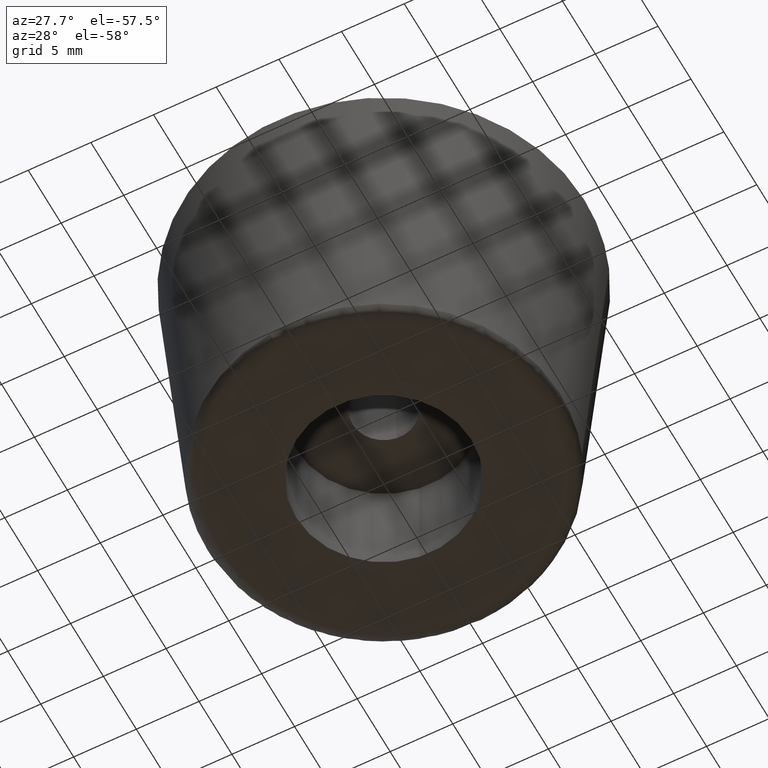
[diagram: clean part render]
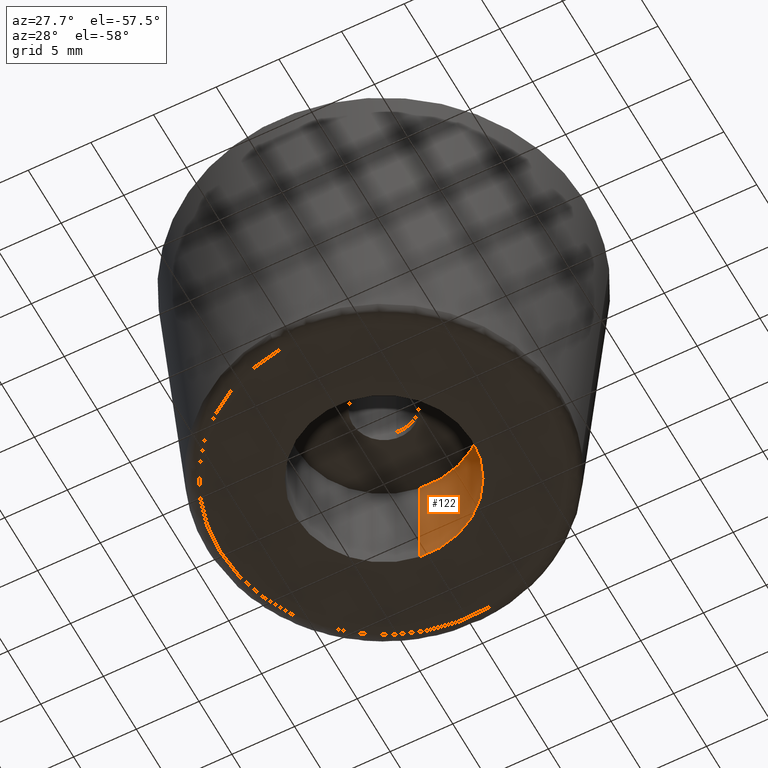
[diagram: same view with one face highlighted and labeled with its STEP entity id]
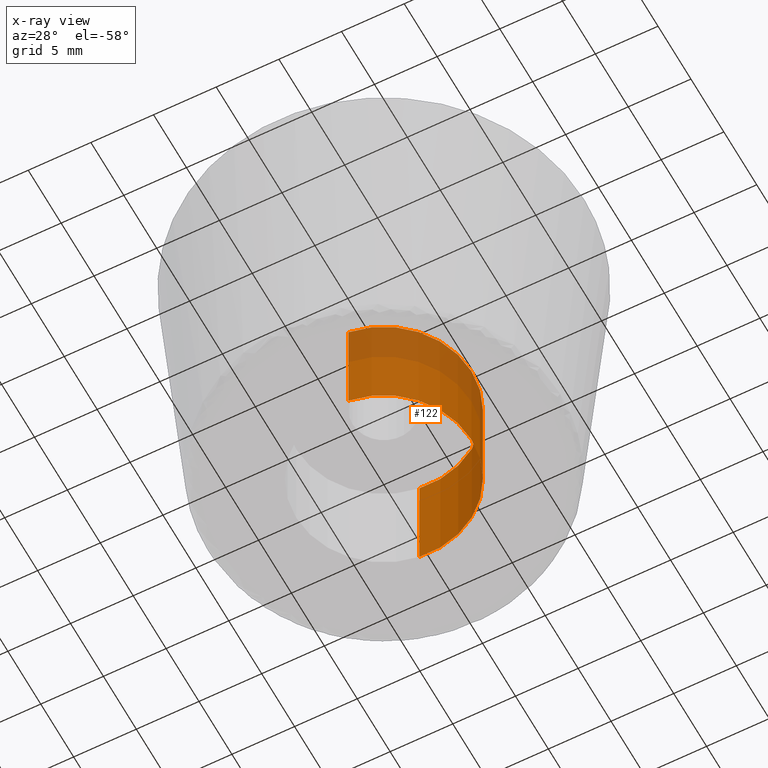
[diagram: x-ray of the same camera — body ghosted, the highlighted face saturated]
A machine part, auxiliary view. The second image highlights one B-rep face of the part: STEP entity #122.
The next image is the same camera in x-ray: the body ghosted, the highlighted face saturated — about 30% of this face is hidden behind the body in this view.
In plain terms, the highlighted cylindrical surface (partial cylindrical patch) has radius 7 mm, axis along (0, 0, 1).
Its self-contained STEP definition (entity closure, byte-faithful):
#122=ADVANCED_FACE('',(#239),#238,.F.);
#238=CYLINDRICAL_SURFACE('',#397,7.00000000000E+000);
#239=FACE_OUTER_BOUND('',#398,.T.);
#394=CARTESIAN_POINT('',(-1.44077009822E-012,-8.20712436667E-013,9.00000000000E+000));
#395=DIRECTION('',(5.09954165523E-015,3.50603548600E-016,1.00000000000E+000));
#396=DIRECTION('',(1.18033734801E-001,-9.93009585779E-001,-2.53765262771E-016));
#397=AXIS2_PLACEMENT_3D('',#394,#395,#396);
#398=EDGE_LOOP('',(#556,#557,#558,#559));
#556=ORIENTED_EDGE('',*,*,#638,.T.);
#557=ORIENTED_EDGE('',*,*,#660,.T.);
#558=ORIENTED_EDGE('',*,*,#652,.F.);
#559=ORIENTED_EDGE('',*,*,#661,.F.);
#638=EDGE_CURVE('',#815,#807,#816,.T.);
#652=EDGE_CURVE('',#906,#913,#914,.T.);
#660=EDGE_CURVE('',#807,#913,#968,.T.);
#661=EDGE_CURVE('',#815,#906,#974,.T.);
#807=VERTEX_POINT('',#1167);
#815=VERTEX_POINT('',#1173);
#816=CIRCLE('',#1177,6.99999999999E+000);
#906=VERTEX_POINT('',#1238);
#913=VERTEX_POINT('',#1243);
#914=CIRCLE('',#1247,6.99999999999E+000);
#968=(BOUNDED_CURVE() B_SPLINE_CURVE(1,(#1282,#1283),.UNSPECIFIED.,.F.,.F.) B_SPLINE_CURVE_WITH_KNOTS((2,2),(8.33333343261E-002,9.16666664274E-001),.UNSPECIFIED.) CURVE() GEOMETRIC_REPRESENTATION_ITEM() RATIONAL_B_SPLINE_CURVE((1.00000000000E+000,1.00000000000E+000)) REPRESENTATION_ITEM('') );
#974=(BOUNDED_CURVE() B_SPLINE_CURVE(1,(#1284,#1285),.UNSPECIFIED.,.F.,.F.) B_SPLINE_CURVE_WITH_KNOTS((2,2),(8.33333333335E-002,9.16666666667E-001),.UNSPECIFIED.) CURVE() GEOMETRIC_REPRESENTATION_ITEM() RATIONAL_B_SPLINE_CURVE((7.50000000000E-001,7.50000000000E-001)) REPRESENTATION_ITEM('') );
#1167=CARTESIAN_POINT('',(8.26233601588E-001,-6.95106740260E+000,8.36601376466E-014));
#1173=CARTESIAN_POINT('',(-8.27437528304E-001,6.95092419299E+000,4.19614515861E-014));
#1174=CARTESIAN_POINT('',(5.68434188608E-012,2.58104648765E-012,6.27496144932E-014));
#1175=DIRECTION('',(-9.98644603908E-014,-1.48785632396E-014,-1.00000000000E+000));
#1176=DIRECTION('',(-1.00000000000E+000,-3.68899355507E-013,9.98644603908E-014));
#1177=AXIS2_PLACEMENT_3D('',#1174,#1175,#1176);
#1238=CARTESIAN_POINT('',(-8.27437528304E-001,6.95092419298E+000,9.00000000000E+000));
#1243=CARTESIAN_POINT('',(8.26233601588E-001,-6.95106740260E+000,9.00000000000E+000));
#1244=CARTESIAN_POINT('',(1.14033227305E-011,-1.76747505520E-012,9.00000000000E+000));
#1245=DIRECTION('',(0.00000000000E+000,0.00000000000E+000,-1.00000000000E+000));
#1246=DIRECTION('',(-1.00000000000E+000,2.51988905932E-013,0.00000000000E+000));
#1247=AXIS2_PLACEMENT_3D('',#1244,#1245,#1246);
#1282=CARTESIAN_POINT('',(8.26236143604E-001,-6.95106710046E+000,1.07203693700E-008));
#1283=CARTESIAN_POINT('',(8.26236143604E-001,-6.95106710046E+000,8.99999997416E+000));
#1284=CARTESIAN_POINT('',(-8.26236143607E-001,6.95106710045E+000,2.72522745111E-013));
#1285=CARTESIAN_POINT('',(-8.26236143607E-001,6.95106710045E+000,9.00000000000E+000));